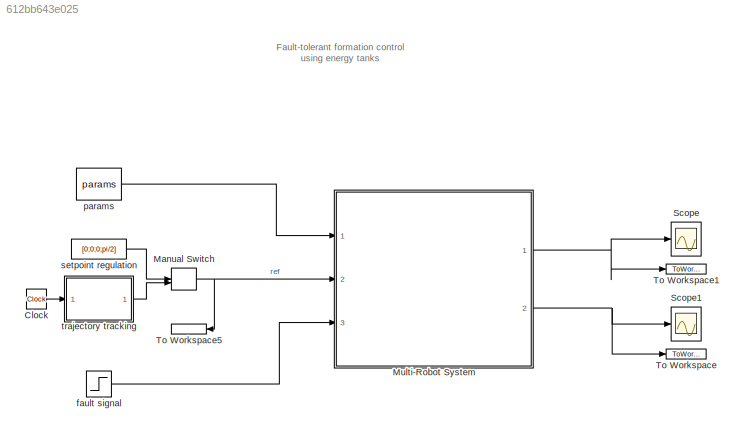
MODEL slx_612bb643e025
KIND model
CONFIG AbsTol = auto
CONFIG EnableMultiTasking = off
CONFIG FixedStep = auto
CONFIG MaxStep = auto
CONFIG MinStep = auto
CONFIG RelTol = 1e-3
CONFIG SampleTimeConstraint = Unconstrained
CONFIG SolverName = VariableStepAuto
CONFIG StartTime = 0.0
CONFIG StopTime = T
BLOCK [Clock] Clock
BLOCK [ManualSwitch] Manual Switch
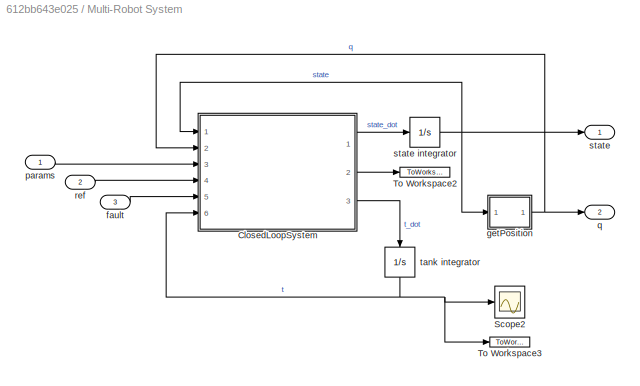
BLOCK [SubSystem] Multi-Robot System
  Ports = [3, 2]
  RequestExecContextInheritance = off
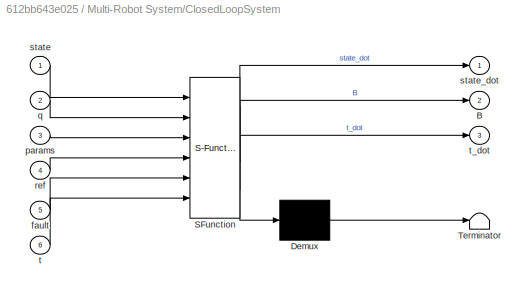
BLOCK [SubSystem] Multi-Robot System/ClosedLoopSystem
  ErrorFcn = Stateflow.Translate.translate
  PermitHierarchicalResolution = ExplicitOnly
  Ports = [6, 3]
  RequestExecContextInheritance = off
  SFBlockType = MATLAB Function
  TreatAsAtomicUnit = on
BLOCK [Demux] Multi-Robot System/ClosedLoopSystem/ Demux 
  Outputs = 1
  Ports = [1, 1]
BLOCK [S-Function] Multi-Robot System/ClosedLoopSystem/ SFunction 
  EnableBusSupport = on
  FunctionName = sf_sfun
  PortCounts = [6 4]
  Ports = [6, 4]
  SFcnIsStateOwnerBlock = off
  SFunctionDeploymentMode = off
  Tag = Stateflow S-Function 2
BLOCK [Terminator] Multi-Robot System/ClosedLoopSystem/ Terminator 
BLOCK [Outport] Multi-Robot System/ClosedLoopSystem/B
  Port = 2
BLOCK [Inport] Multi-Robot System/ClosedLoopSystem/fault
  Port = 5
BLOCK [Inport] Multi-Robot System/ClosedLoopSystem/params
  Port = 3
BLOCK [Inport] Multi-Robot System/ClosedLoopSystem/q
  Port = 2
BLOCK [Inport] Multi-Robot System/ClosedLoopSystem/ref
  Port = 4
BLOCK [Inport] Multi-Robot System/ClosedLoopSystem/state
BLOCK [Outport] Multi-Robot System/ClosedLoopSystem/state_dot
BLOCK [Inport] Multi-Robot System/ClosedLoopSystem/t
  Port = 6
BLOCK [Outport] Multi-Robot System/ClosedLoopSystem/t_dot
  Port = 3
BLOCK [Scope] Multi-Robot System/Scope2
  Floating = off
  NumInputPorts = 1
  Ports = [1]
  ScopeSpecificationString = Simulink.scopes.TimeScopeBlockCfg('CurrentConfiguration', extmgr.ConfigurationSet(extmgr.Configuration('Core','General UI',true),extmgr.Configuration('Core','Source UI',true),extmgr.Configuration('Sources','WiredSimulink',true,'DataLoggingVariableName','ScopeData1'),extmgr.Configuration('Visuals','Time Domain',true,'SerializedDisplays',{struct('MinYLimReal','55.04408','MaxYLimReal','163.13551','YL...<+2528ch>
BLOCK [ToWorkspace] Multi-Robot System/To Workspace2
  FixptAsFi = on
  MaxDataPoints = inf
  Ports = [1]
  SampleTime = -1
  SaveFormat = Timeseries
  VariableName = B
BLOCK [ToWorkspace] Multi-Robot System/To Workspace3
  FixptAsFi = on
  MaxDataPoints = inf
  Ports = [1]
  SampleTime = -1
  SaveFormat = Timeseries
  VariableName = t
BLOCK [Inport] Multi-Robot System/fault
  Port = 3
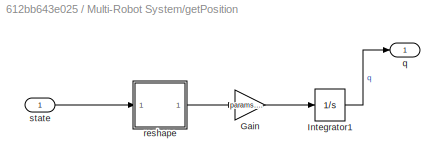
BLOCK [SubSystem] Multi-Robot System/getPosition
  Ports = [1, 1]
  RequestExecContextInheritance = off
BLOCK [Gain] Multi-Robot System/getPosition/Gain
  Gain = params.gain
BLOCK [Integrator] Multi-Robot System/getPosition/Integrator1
  Ports = [1, 1]
BLOCK [Outport] Multi-Robot System/getPosition/q
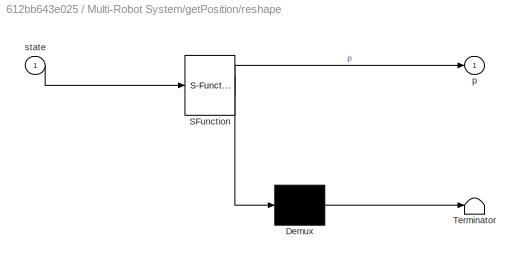
BLOCK [SubSystem] Multi-Robot System/getPosition/reshape
  ErrorFcn = Stateflow.Translate.translate
  PermitHierarchicalResolution = ExplicitOnly
  Ports = [1, 1]
  RequestExecContextInheritance = off
  SFBlockType = MATLAB Function
  TreatAsAtomicUnit = on
BLOCK [Demux] Multi-Robot System/getPosition/reshape/ Demux 
  Outputs = 1
  Ports = [1, 1]
BLOCK [S-Function] Multi-Robot System/getPosition/reshape/ SFunction 
  EnableBusSupport = on
  FunctionName = sf_sfun
  PortCounts = [1 2]
  Ports = [1, 2]
  SFcnIsStateOwnerBlock = off
  SFunctionDeploymentMode = off
  Tag = Stateflow S-Function 5
BLOCK [Terminator] Multi-Robot System/getPosition/reshape/ Terminator 
BLOCK [Outport] Multi-Robot System/getPosition/reshape/p
BLOCK [Inport] Multi-Robot System/getPosition/reshape/state
BLOCK [Inport] Multi-Robot System/getPosition/state
BLOCK [Inport] Multi-Robot System/params
BLOCK [Outport] Multi-Robot System/q
  Port = 2
BLOCK [Inport] Multi-Robot System/ref
  Port = 2
BLOCK [Outport] Multi-Robot System/state
BLOCK [Integrator] Multi-Robot System/state integrator
  Ports = [1, 1]
BLOCK [Integrator] Multi-Robot System/tank integrator
  NameLocation = left
  Ports = [1, 1]
BLOCK [Scope] Scope
  Floating = off
  NumInputPorts = 1
  Ports = [1]
  ScopeSpecificationString = Simulink.scopes.TimeScopeBlockCfg('CurrentConfiguration', extmgr.ConfigurationSet(extmgr.Configuration('Core','General UI',true),extmgr.Configuration('Core','Source UI',true),extmgr.Configuration('Sources','WiredSimulink',true),extmgr.Configuration('Visuals','Time Domain',true,'SerializedDisplays',{struct('MinYLimReal','-16789718558351373093012643810880019595802744140230017948031093203431333980938...<+5196ch>
BLOCK [Scope] Scope1
  Floating = off
  NumInputPorts = 1
  Ports = [1]
  ScopeSpecificationString = Simulink.scopes.TimeScopeBlockCfg('CurrentConfiguration', extmgr.ConfigurationSet(extmgr.Configuration('Core','General UI',true),extmgr.Configuration('Core','Source UI',true),extmgr.Configuration('Sources','WiredSimulink',true,'DataLoggingVariableName','ScopeData1'),extmgr.Configuration('Visuals','Time Domain',true,'SerializedDisplays',{struct('MinYLimReal','-45.12606','MaxYLimReal','31.57166','YL...<+2538ch>
BLOCK [ToWorkspace] To Workspace
  FixptAsFi = on
  MaxDataPoints = inf
  Ports = [1]
  SampleTime = -1
  SaveFormat = Timeseries
  VariableName = q
BLOCK [ToWorkspace] To Workspace1
  FixptAsFi = on
  MaxDataPoints = inf
  Ports = [1]
  SampleTime = -1
  SaveFormat = Timeseries
  VariableName = state
BLOCK [ToWorkspace] To Workspace5
  FixptAsFi = on
  MaxDataPoints = inf
  NameLocation = top
  Ports = [1]
  SampleTime = -1
  SaveFormat = Timeseries
  VariableName = ref
BLOCK [Step] fault signal
  SampleTime = 0
  Time = 25
BLOCK [Constant] params
  OutDataTypeStr = Bus: params_bus
  Value = params
BLOCK [Constant] setpoint regulation
  Value = [0;0;0;pi/2]
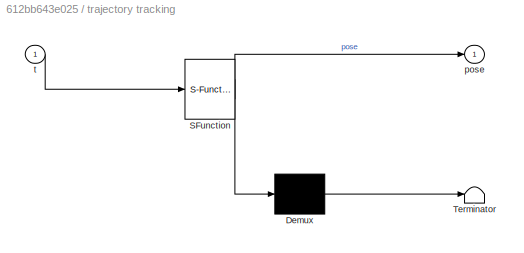
BLOCK [SubSystem] trajectory tracking
  ErrorFcn = Stateflow.Translate.translate
  PermitHierarchicalResolution = ExplicitOnly
  Ports = [1, 1]
  RequestExecContextInheritance = off
  SFBlockType = MATLAB Function
  TreatAsAtomicUnit = on
BLOCK [Demux] trajectory tracking/ Demux 
  Outputs = 1
  Ports = [1, 1]
BLOCK [S-Function] trajectory tracking/ SFunction 
  EnableBusSupport = on
  FunctionName = sf_sfun
  PortCounts = [1 2]
  Ports = [1, 2]
  SFcnIsStateOwnerBlock = off
  SFunctionDeploymentMode = off
  Tag = Stateflow S-Function 1
BLOCK [Terminator] trajectory tracking/ Terminator 
BLOCK [Outport] trajectory tracking/pose
BLOCK [Inport] trajectory tracking/t
ANNOTATION (root): Fault-tolerant formation control using energy tanks
LINE Clock:1 -> trajectory tracking:1
NET Manual Switch:1 -> Multi-Robot System:2, To Workspace5:1
LINE Multi-Robot System/ClosedLoopSystem:1 -> Multi-Robot System/state integrator:1
LINE Multi-Robot System/ClosedLoopSystem:2 -> Multi-Robot System/To Workspace2:1
LINE Multi-Robot System/ClosedLoopSystem:3 -> Multi-Robot System/tank integrator:1
LINE Multi-Robot System/fault:1 -> Multi-Robot System/ClosedLoopSystem:5
LINE Multi-Robot System/getPosition/Gain:1 -> Multi-Robot System/getPosition/Integrator1:1
LINE Multi-Robot System/getPosition/Integrator1:1 -> Multi-Robot System/getPosition/q:1
LINE Multi-Robot System/getPosition/reshape:1 -> Multi-Robot System/getPosition/Gain:1
LINE Multi-Robot System/getPosition/state:1 -> Multi-Robot System/getPosition/reshape:1
NET Multi-Robot System/getPosition:1 -> Multi-Robot System/ClosedLoopSystem:2, Multi-Robot System/q:1
LINE Multi-Robot System/params:1 -> Multi-Robot System/ClosedLoopSystem:3
LINE Multi-Robot System/ref:1 -> Multi-Robot System/ClosedLoopSystem:4
NET Multi-Robot System/state integrator:1 -> Multi-Robot System/ClosedLoopSystem:1, Multi-Robot System/getPosition:1, Multi-Robot System/state:1
NET Multi-Robot System/tank integrator:1 -> Multi-Robot System/ClosedLoopSystem:6, Multi-Robot System/Scope2:1, Multi-Robot System/To Workspace3:1
NET Multi-Robot System:1 -> Scope:1, To Workspace1:1
NET Multi-Robot System:2 -> Scope1:1, To Workspace:1
LINE fault signal:1 -> Multi-Robot System:3
LINE params:1 -> Multi-Robot System:1
LINE setpoint regulation:1 -> Manual Switch:1
LINE trajectory tracking:1 -> Manual Switch:2
note: NET lines group one-source signal fan-out (src -> all destinations, sorted); 1:1 wires keep LINE
CHART trajectory tracking states=1 transitions=1
  STATE_LABEL 'eML_blk_kernel()'
  STATE_LABEL 'SCRIPT:\n%% generate reference trajectory\nfunction pose = trajectory(t)\nt1 = 5;\nt_end = 55;\n\nw = 0.25;\nphi = -w*t1;\nA = 80;\nz_vel = 1;\n\nif(t<t1)\n    y = [0;0;0];\n    theta = pi/2;\nelseif(t>t_end)\n    y = [A*sin(w*t_end+phi); -A*cos(w*t_end+phi); z_vel*t_end] - [A*sin(w*t1+phi); -A*cos(w*t1+phi); z_vel*t1];\n    theta = atan2(A*sin(w*t_end+phi), A*cos(w*t_end+phi));\nelse\n    y = [A*sin(w*t+phi); -A*c...<+149ch>'
CHART Multi-Robot System/ClosedLoopSystem states=1 transitions=1
  STATE_LABEL 'eML_blk_kernel()'
  STATE_LABEL 'SCRIPT:\nfunction [state_dot,B,t_dot] = closedLoopSystem(state, q, params, ref, fault, t)\nn = 3;\t% task space\nN = 5;  % number of robots\nfaulted_robot = params.faulted_robot;\nalpha = zeros(N,1);\n\n%% initialize some matrices\np = state(1:n*N);           % robots momenta\nm = params.m;               % robots masses\nM = zeros(n*N, n*N);      \t% inertia matrix\nd = params.d;               % frict. coeff\nD...<+3608ch>'
CHART Multi-Robot System/getPosition/reshape states=1 transitions=1
  STATE_LABEL 'eML_blk_kernel()'
  STATE_LABEL "SCRIPT:\nfunction p = reshape(state)\n    %n = 3;\n    %N = roots([n/2, n/2, -size(state,1)]).'*(roots([n/2, n/2, -size(state,1)])>0);\n    N = 5;\n    p = state(1:3*5);\nend\n\n\n\n\n%"
CHART  states=0 transitions=0
CHART  states=0 transitions=0
CHART  states=0 transitions=0
